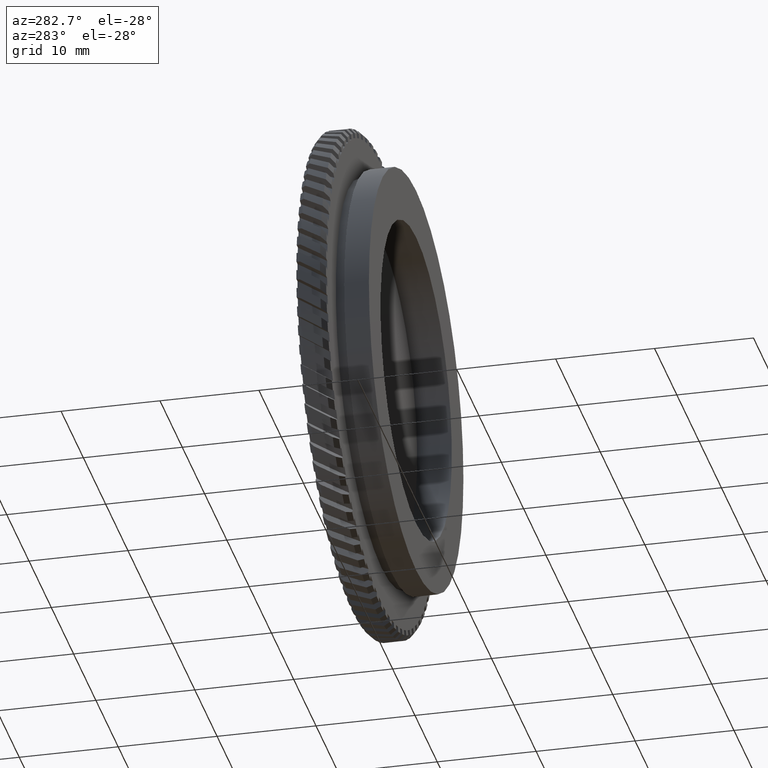
[diagram: clean part render]
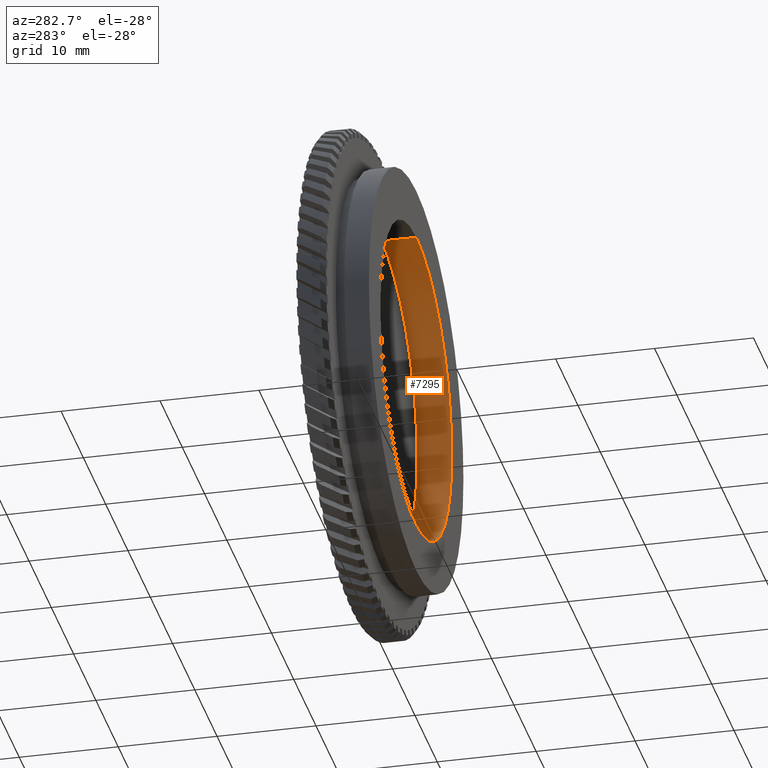
[diagram: same view with one face highlighted and labeled with its STEP entity id]
A machine part, auxiliary view. The second image highlights one B-rep face of the part: STEP entity #7295.
In plain terms, the highlighted cylindrical surface (partial cylindrical patch) has radius 16 mm, axis along (-0, 1, -0).
Its self-contained STEP definition (entity closure, byte-faithful):
#879 = VERTEX_POINT ( 'NONE', #13279 ) ;
#933 = DIRECTION ( 'NONE',  ( 0.0000000000000000000, 0.0000000000000000000, 1.000000000000000000 ) ) ;
#1062 = CARTESIAN_POINT ( 'NONE',  ( 1.959434878635766300E-015, 18.87125740523061500, -16.00000000000000700 ) ) ;
#2255 = EDGE_CURVE ( 'NONE', #5459, #10008, #4892, .T. ) ;
#2377 = ORIENTED_EDGE ( 'NONE', *, *, #3737, .F. ) ;
#3391 = VERTEX_POINT ( 'NONE', #1062 ) ;
#3507 = DIRECTION ( 'NONE',  ( 0.0000000000000000000, 0.0000000000000000000, 1.000000000000000000 ) ) ;
#3561 = ORIENTED_EDGE ( 'NONE', *, *, #16110, .T. ) ;
#3737 = EDGE_CURVE ( 'NONE', #10008, #3391, #18507, .T. ) ;
#4131 = VECTOR ( 'NONE', #17702, 1000.000000000000000 ) ;
#4727 = LINE ( 'NONE', #8971, #18833 ) ;
#4892 = CIRCLE ( 'NONE', #5120, 16.00000000000000700 ) ;
#5120 = AXIS2_PLACEMENT_3D ( 'NONE', #18340, #7313, #15232 ) ;
#5459 = VERTEX_POINT ( 'NONE', #19184 ) ;
#5905 = CARTESIAN_POINT ( 'NONE',  ( 0.0000000000000000000, 66.62876213592232900, 0.0000000000000000000 ) ) ;
#7295 = ADVANCED_FACE ( 'NONE', ( #19328 ), #9123, .F. ) ;
#7313 = DIRECTION ( 'NONE',  ( -0.0000000000000000000, 1.000000000000000000, -0.0000000000000000000 ) ) ;
#8194 = ORIENTED_EDGE ( 'NONE', *, *, #2255, .F. ) ;
#8346 = DIRECTION ( 'NONE',  ( -0.0000000000000000000, 1.000000000000000000, -0.0000000000000000000 ) ) ;
#8971 = CARTESIAN_POINT ( 'NONE',  ( 0.0000000000000000000, 66.62876213592232900, 16.00000000000000700 ) ) ;
#9123 = CYLINDRICAL_SURFACE ( 'NONE', #12010, 16.00000000000000700 ) ;
#10008 = VERTEX_POINT ( 'NONE', #12209 ) ;
#12010 = AXIS2_PLACEMENT_3D ( 'NONE', #5905, #15163, #933 ) ;
#12209 = CARTESIAN_POINT ( 'NONE',  ( 1.959434878635766300E-015, 15.37125740523061900, -16.00000000000000700 ) ) ;
#13191 = CARTESIAN_POINT ( 'NONE',  ( 1.959434878635766300E-015, 66.62876213592232900, -16.00000000000000700 ) ) ;
#13279 = CARTESIAN_POINT ( 'NONE',  ( 0.0000000000000000000, 18.87125740523061500, 16.00000000000000700 ) ) ;
#13461 = DIRECTION ( 'NONE',  ( -0.0000000000000000000, 1.000000000000000000, -0.0000000000000000000 ) ) ;
#13601 = EDGE_CURVE ( 'NONE', #5459, #879, #4727, .T. ) ;
#13984 = AXIS2_PLACEMENT_3D ( 'NONE', #17664, #8346, #3507 ) ;
#15132 = CIRCLE ( 'NONE', #13984, 16.00000000000000700 ) ;
#15163 = DIRECTION ( 'NONE',  ( -0.0000000000000000000, 1.000000000000000000, -0.0000000000000000000 ) ) ;
#15232 = DIRECTION ( 'NONE',  ( 0.0000000000000000000, 0.0000000000000000000, 1.000000000000000000 ) ) ;
#16110 = EDGE_CURVE ( 'NONE', #879, #3391, #15132, .T. ) ;
#17664 = CARTESIAN_POINT ( 'NONE',  ( 0.0000000000000000000, 18.87125740523061500, 0.0000000000000000000 ) ) ;
#17702 = DIRECTION ( 'NONE',  ( -0.0000000000000000000, 1.000000000000000000, -0.0000000000000000000 ) ) ;
#18340 = CARTESIAN_POINT ( 'NONE',  ( 0.0000000000000000000, 15.37125740523061900, 0.0000000000000000000 ) ) ;
#18491 = ORIENTED_EDGE ( 'NONE', *, *, #13601, .T. ) ;
#18507 = LINE ( 'NONE', #13191, #4131 ) ;
#18833 = VECTOR ( 'NONE', #13461, 1000.000000000000000 ) ;
#19184 = CARTESIAN_POINT ( 'NONE',  ( 0.0000000000000000000, 15.37125740523061900, 16.00000000000000700 ) ) ;
#19328 = FACE_OUTER_BOUND ( 'NONE', #19466, .T. ) ;
#19466 = EDGE_LOOP ( 'NONE', ( #2377, #8194, #18491, #3561 ) ) ;